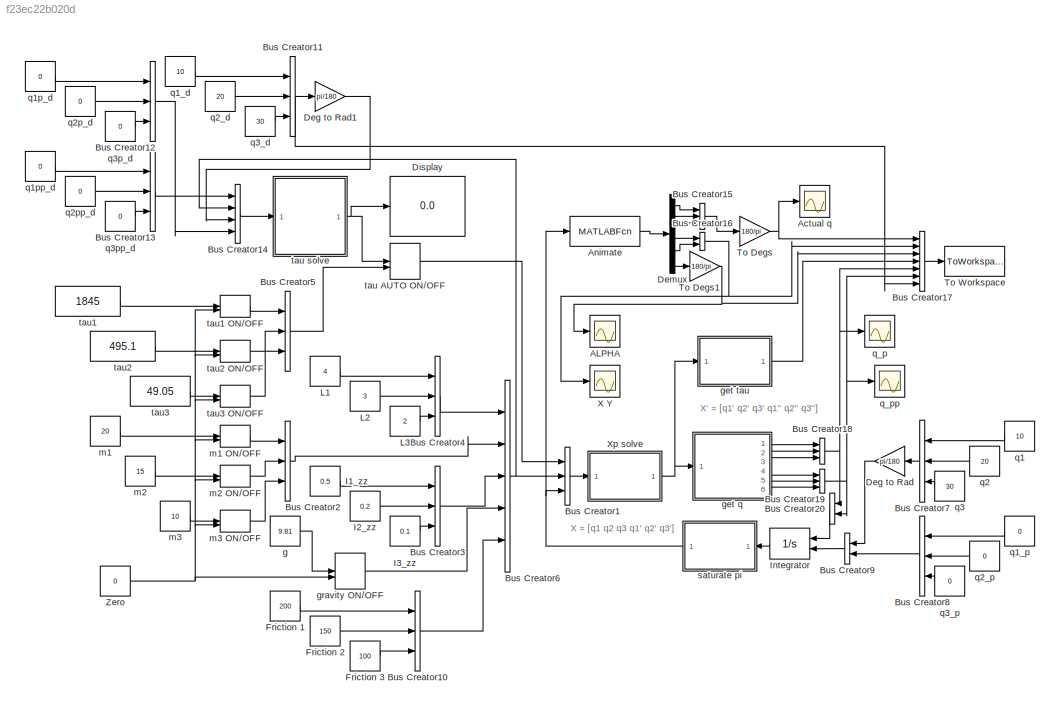
MODEL slx_f23ec22b020d
KIND model
BLOCK [Scope] ALPHA
  DataFormat = StructureWithTime
  Floating = off
  LegendLocations = 0.77914     0.84116     0.17157    0.056169
  NumInputPorts = 1
  Ports = [1]
  SampleTime = 0
  SaveName = ScopeData3
  ShowLegends = on
  TimeRange = 10
  YMax = 200
  YMin = -175
BLOCK [Scope] Actual q
  DataFormat = StructureWithTime
  Floating = off
  LegendLocations = 0.77787     0.79625     0.17363      0.1185
  NumInputPorts = 1
  Ports = [1]
  SampleTime = 0
  ShowLegends = on
  TimeRange = 10
  YMax = 175
  YMin = -175
BLOCK [MATLABFcn] Animate
  MATLABFcn = project_animate
  OutputDimensions = 6
  OutputSignalType = real
  Ports = [1, 1]
BLOCK [BusCreator] Bus Creator1
  DisplayOption = bar
  Inputs = 3
  Ports = [3, 1]
BLOCK [BusCreator] Bus Creator10
  DisplayOption = bar
  Inputs = 3
  Ports = [3, 1]
BLOCK [BusCreator] Bus Creator11
  DisplayOption = bar
  Inputs = 3
  Ports = [3, 1]
BLOCK [BusCreator] Bus Creator12
  DisplayOption = bar
  Inputs = 3
  Ports = [3, 1]
BLOCK [BusCreator] Bus Creator13
  DisplayOption = bar
  Inputs = 3
  Ports = [3, 1]
BLOCK [BusCreator] Bus Creator14
  DisplayOption = bar
  Ports = [4, 1]
BLOCK [BusCreator] Bus Creator15
  DisplayOption = bar
  Inputs = 3
  Ports = [3, 1]
BLOCK [BusCreator] Bus Creator16
  DisplayOption = bar
  Inputs = 2
  Ports = [2, 1]
BLOCK [BusCreator] Bus Creator17
  DisplayOption = bar
  Inputs = 7
  Ports = [7, 1]
BLOCK [BusCreator] Bus Creator18
  DisplayOption = bar
  Inputs = 3
  Ports = [3, 1]
BLOCK [BusCreator] Bus Creator19
  DisplayOption = bar
  Inputs = 3
  Ports = [3, 1]
BLOCK [BusCreator] Bus Creator2
  DisplayOption = bar
  Inputs = 3
  Ports = [3, 1]
BLOCK [BusCreator] Bus Creator20
  DisplayOption = bar
  Inputs = 2
  Ports = [2, 1]
BLOCK [BusCreator] Bus Creator3
  DisplayOption = bar
  Inputs = 3
  Ports = [3, 1]
BLOCK [BusCreator] Bus Creator4
  DisplayOption = bar
  Inputs = 3
  Ports = [3, 1]
BLOCK [BusCreator] Bus Creator5
  DisplayOption = bar
  Inputs = 3
  Ports = [3, 1]
BLOCK [BusCreator] Bus Creator6
  DisplayOption = bar
  Inputs = 5
  Ports = [5, 1]
BLOCK [BusCreator] Bus Creator7
  DisplayOption = bar
  Inputs = 3
  Ports = [3, 1]
BLOCK [BusCreator] Bus Creator8
  DisplayOption = bar
  Inputs = 3
  Ports = [3, 1]
BLOCK [BusCreator] Bus Creator9
  DisplayOption = bar
  Inputs = 2
  Ports = [2, 1]
BLOCK [Gain] Deg to Rad
  Gain = pi/180
  OutDataTypeStr = Inherit: Inherit via internal rule
  ParamDataTypeStr = Inherit: Inherit via internal rule
  SaturateOnIntegerOverflow = off
BLOCK [Gain] Deg to Rad1
  Gain = pi/180
  OutDataTypeStr = Inherit: Inherit via internal rule
  ParamDataTypeStr = Inherit: Inherit via internal rule
  SaturateOnIntegerOverflow = off
BLOCK [Demux] Demux
  DisplayOption = bar
  Outputs = 6
  Ports = [1, 6]
BLOCK [Display] Display
  Decimation = 1
  Lockdown = off
  Ports = [1]
BLOCK [Constant] Friction 1
  Value = 200
BLOCK [Constant] Friction 2
  Value = 150
BLOCK [Constant] Friction 3
  Value = 100
BLOCK [Constant] I1_zz
  Value = 0.5
BLOCK [Constant] I2_zz
  Value = 0.2
BLOCK [Constant] I3_zz
  Value = 0.1
BLOCK [Integrator] Integrator
  InitialConditionSource = external
  Ports = [2, 1]
BLOCK [Constant] L1
  Value = 4
BLOCK [Constant] L2
  Value = 3
BLOCK [Constant] L3
  Value = 2
BLOCK [Gain] To Degs
  Gain = 180/pi
  OutDataTypeStr = Inherit: Inherit via internal rule
  ParamDataTypeStr = Inherit: Inherit via internal rule
  SaturateOnIntegerOverflow = off
BLOCK [Gain] To Degs1
  Gain = 180/pi
  OutDataTypeStr = Inherit: Inherit via internal rule
  ParamDataTypeStr = Inherit: Inherit via internal rule
  SaturateOnIntegerOverflow = off
BLOCK [ToWorkspace] To Workspace
  MaxDataPoints = inf
  Ports = [1]
  SampleTime = -1
  SaveFormat = Structure With Time
  VariableName = simout
BLOCK [Scope] X Y
  DataFormat = StructureWithTime
  Floating = off
  LegendLocations = 0.80668     0.87419     0.16832    0.076596
  NumInputPorts = 1
  Ports = [1]
  SampleTime = 0
  SaveName = ScopeData2
  ShowLegends = on
  TimeRange = 10
  YMax = 9
  YMin = -0.5
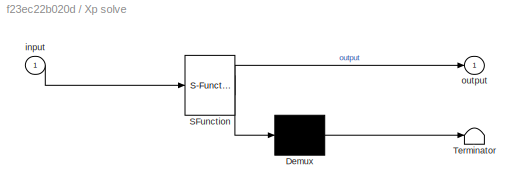
BLOCK [SubSystem] Xp solve
  ErrorFcn = Stateflow.Translate.translate
  FunctionWithSeparateData = off
  MaskHideContents = off
  MinAlgLoopOccurrences = off
  Opaque = off
  PermitHierarchicalResolution = ExplicitOnly
  Ports = [1, 1]
  PropExecContextOutsideSubsystem = off
  RTWSystemCode = Auto
  RequestExecContextInheritance = off
  SFBlockType = MATLAB Function
  TreatAsAtomicUnit = on
BLOCK [Demux] Xp solve/ Demux 
  Outputs = 1
  Ports = [1, 1]
BLOCK [S-Function] Xp solve/ SFunction 
  EnableBusSupport = on
  FunctionName = sf_sfun
  PortCounts = [1 2]
  Ports = [1, 2]
  Tag = Stateflow S-Function project_task_1 1
BLOCK [Terminator] Xp solve/ Terminator 
BLOCK [Inport] Xp solve/input
  IconDisplay = Port number
BLOCK [Outport] Xp solve/output
  IconDisplay = Port number
BLOCK [Constant] Zero
  Value = 0
BLOCK [Constant] g
  Value = 9.81
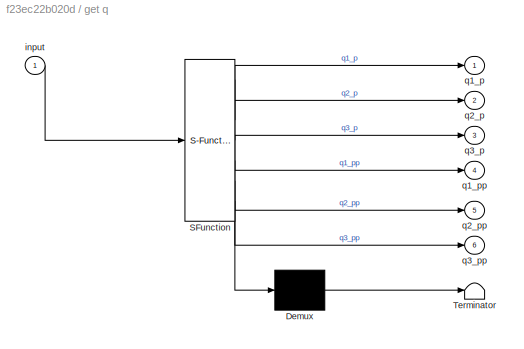
BLOCK [SubSystem] get q
  ErrorFcn = Stateflow.Translate.translate
  FunctionWithSeparateData = off
  MaskHideContents = off
  MinAlgLoopOccurrences = off
  Opaque = off
  PermitHierarchicalResolution = ExplicitOnly
  Ports = [1, 6]
  PropExecContextOutsideSubsystem = off
  RTWSystemCode = Auto
  RequestExecContextInheritance = off
  SFBlockType = MATLAB Function
  TreatAsAtomicUnit = on
BLOCK [Demux] get q/ Demux 
  Outputs = 1
  Ports = [1, 1]
BLOCK [S-Function] get q/ SFunction 
  EnableBusSupport = on
  FunctionName = sf_sfun
  PortCounts = [1 7]
  Ports = [1, 7]
  Tag = Stateflow S-Function project_task_1 4
BLOCK [Terminator] get q/ Terminator 
BLOCK [Inport] get q/input
  IconDisplay = Port number
BLOCK [Outport] get q/q1_p
  IconDisplay = Port number
BLOCK [Outport] get q/q1_pp
  IconDisplay = Port number
  Port = 4
BLOCK [Outport] get q/q2_p
  IconDisplay = Port number
  Port = 2
BLOCK [Outport] get q/q2_pp
  IconDisplay = Port number
  Port = 5
BLOCK [Outport] get q/q3_p
  IconDisplay = Port number
  Port = 3
BLOCK [Outport] get q/q3_pp
  IconDisplay = Port number
  Port = 6
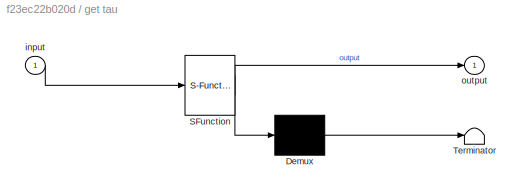
BLOCK [SubSystem] get tau
  ErrorFcn = Stateflow.Translate.translate
  FunctionWithSeparateData = off
  MaskHideContents = off
  MinAlgLoopOccurrences = off
  Opaque = off
  PermitHierarchicalResolution = ExplicitOnly
  Ports = [1, 1]
  PropExecContextOutsideSubsystem = off
  RTWSystemCode = Auto
  RequestExecContextInheritance = off
  SFBlockType = MATLAB Function
  TreatAsAtomicUnit = on
BLOCK [Demux] get tau/ Demux 
  Outputs = 1
  Ports = [1, 1]
BLOCK [S-Function] get tau/ SFunction 
  EnableBusSupport = on
  FunctionName = sf_sfun
  PortCounts = [1 2]
  Ports = [1, 2]
  Tag = Stateflow S-Function project_task_1 2
BLOCK [Terminator] get tau/ Terminator 
BLOCK [Inport] get tau/input
  IconDisplay = Port number
BLOCK [Outport] get tau/output
  IconDisplay = Port number
BLOCK [ManualSwitch] gravity ON//OFF
BLOCK [Constant] m1
  Value = 20
BLOCK [ManualSwitch] m1 ON//OFF
BLOCK [Constant] m2
  Value = 15
BLOCK [ManualSwitch] m2 ON//OFF
BLOCK [Constant] m3
  Value = 10
BLOCK [ManualSwitch] m3 ON//OFF
BLOCK [Constant] q1
  Value = 10
BLOCK [Constant] q1_d
  Value = 10
BLOCK [Constant] q1_p
  Value = 0
BLOCK [Constant] q1p_d
  Value = 0
BLOCK [Constant] q1pp_d
  Value = 0
BLOCK [Constant] q2
  Value = 20
BLOCK [Constant] q2_d
  Value = 20
BLOCK [Constant] q2_p
  Value = 0
BLOCK [Constant] q2p_d
  Value = 0
BLOCK [Constant] q2pp_d
  Value = 0
BLOCK [Constant] q3
  Value = 30
BLOCK [Constant] q3_d
  Value = 30
BLOCK [Constant] q3_p
  Value = 0
BLOCK [Constant] q3p_d
  Value = 0
BLOCK [Constant] q3pp_d
  Value = 0
BLOCK [Scope] q_p
  DataFormat = StructureWithTime
  Floating = off
  NumInputPorts = 1
  Ports = [1]
  SampleTime = 0
  SaveName = ScopeData1
  ShowLegends = on
  TimeRange = 20
  YMax = 1.5
  YMin = -1.75
BLOCK [Scope] q_pp
  DataFormat = StructureWithTime
  Floating = off
  NumInputPorts = 1
  Ports = [1]
  SampleTime = 0
  SaveName = ScopeData4
  ShowLegends = on
  TimeRange = 20
  YMax = 40
  YMin = -75
  ZoomMode = xonly
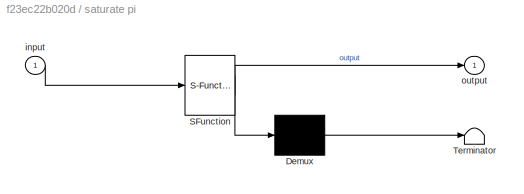
BLOCK [SubSystem] saturate pi
  ErrorFcn = Stateflow.Translate.translate
  FunctionWithSeparateData = off
  MaskHideContents = off
  MinAlgLoopOccurrences = off
  Opaque = off
  PermitHierarchicalResolution = ExplicitOnly
  Ports = [1, 1]
  PropExecContextOutsideSubsystem = off
  RTWSystemCode = Auto
  RequestExecContextInheritance = off
  SFBlockType = MATLAB Function
  TreatAsAtomicUnit = on
BLOCK [Demux] saturate pi/ Demux 
  Outputs = 1
  Ports = [1, 1]
BLOCK [S-Function] saturate pi/ SFunction 
  EnableBusSupport = on
  FunctionName = sf_sfun
  PortCounts = [1 2]
  Ports = [1, 2]
  Tag = Stateflow S-Function project_task_1 3
BLOCK [Terminator] saturate pi/ Terminator 
BLOCK [Inport] saturate pi/input
  IconDisplay = Port number
BLOCK [Outport] saturate pi/output
  IconDisplay = Port number
BLOCK [ManualSwitch] tau AUTO ON//OFF
  CurrentSetting = 0
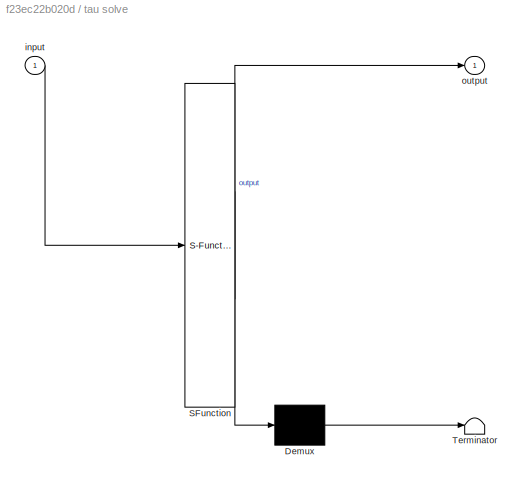
BLOCK [SubSystem] tau solve
  ErrorFcn = Stateflow.Translate.translate
  FunctionWithSeparateData = off
  MaskHideContents = off
  MinAlgLoopOccurrences = off
  Opaque = off
  PermitHierarchicalResolution = ExplicitOnly
  Ports = [1, 1]
  PropExecContextOutsideSubsystem = off
  RTWSystemCode = Auto
  RequestExecContextInheritance = off
  SFBlockType = MATLAB Function
  TreatAsAtomicUnit = on
BLOCK [Demux] tau solve/ Demux 
  Outputs = 1
  Ports = [1, 1]
BLOCK [S-Function] tau solve/ SFunction 
  EnableBusSupport = on
  FunctionName = sf_sfun
  PortCounts = [1 2]
  Ports = [1, 2]
  Tag = Stateflow S-Function project_task_1 5
BLOCK [Terminator] tau solve/ Terminator 
BLOCK [Inport] tau solve/input
  IconDisplay = Port number
BLOCK [Outport] tau solve/output
  IconDisplay = Port number
BLOCK [Constant] tau1
  Value = 1845
BLOCK [ManualSwitch] tau1 ON//OFF
BLOCK [Constant] tau2
  Value = 495.1
BLOCK [ManualSwitch] tau2 ON//OFF
BLOCK [Constant] tau3
  Value = 49.05
BLOCK [ManualSwitch] tau3 ON//OFF
ANNOTATION (root): X = [q1 q2 q3 q1' q2' q3']
ANNOTATION (root): X' = [q1' q2' q3' q1'' q2'' q3'']
LINE Animate:1 -> Demux:1
LINE Bus Creator10:1 -> Bus Creator6:5
NET Bus Creator11:1 -> Bus Creator17:7, Deg to Rad1:1
LINE Bus Creator12:1 -> Bus Creator14:4
LINE Bus Creator13:1 -> Bus Creator14:1
LINE Bus Creator14:1 -> tau solve:1
LINE Bus Creator15:1 -> To Degs:1
NET Bus Creator16:1 -> Bus Creator17:2, X Y:1
LINE Bus Creator17:1 -> To Workspace:1
NET Bus Creator18:1 -> Bus Creator17:5, Bus Creator20:1, q_p:1
NET Bus Creator19:1 -> Bus Creator17:6, Bus Creator20:2, q_pp:1
LINE Bus Creator1:1 -> Xp solve:1
LINE Bus Creator20:1 -> Integrator:1
LINE Bus Creator2:1 -> Bus Creator6:2
LINE Bus Creator3:1 -> Bus Creator6:3
LINE Bus Creator4:1 -> Bus Creator6:1
LINE Bus Creator5:1 -> tau AUTO ON//OFF:2
NET Bus Creator6:1 -> Bus Creator14:2, Bus Creator1:2
LINE Bus Creator7:1 -> Deg to Rad:1
LINE Bus Creator8:1 -> Bus Creator9:2
LINE Bus Creator9:1 -> Integrator:2
LINE Deg to Rad1:1 -> Bus Creator14:3
LINE Deg to Rad:1 -> Bus Creator9:1
LINE Demux:1 -> Bus Creator15:1
LINE Demux:2 -> Bus Creator15:2
LINE Demux:3 -> Bus Creator15:3
LINE Demux:4 -> Bus Creator16:1
LINE Demux:5 -> Bus Creator16:2
LINE Demux:6 -> To Degs1:1
LINE Friction 1:1 -> Bus Creator10:1
LINE Friction 2:1 -> Bus Creator10:2
LINE Friction 3:1 -> Bus Creator10:3
LINE I1_zz:1 -> Bus Creator3:1
LINE I2_zz:1 -> Bus Creator3:2
LINE I3_zz:1 -> Bus Creator3:3
LINE Integrator:1 -> saturate pi:1
LINE L1:1 -> Bus Creator4:1
LINE L2:1 -> Bus Creator4:2
LINE L3:1 -> Bus Creator4:3
NET To Degs1:1 -> ALPHA:1, Bus Creator17:3
NET To Degs:1 -> Actual q:1, Bus Creator17:1
NET Xp solve:1 -> get q:1, get tau:1
NET Zero:1 -> gravity ON//OFF:2, m1 ON//OFF:2, m2 ON//OFF:2, m3 ON//OFF:2, tau1 ON//OFF:2, tau2 ON//OFF:2, tau3 ON//OFF:2
LINE g:1 -> gravity ON//OFF:1
LINE get q:1 -> Bus Creator18:1
LINE get q:2 -> Bus Creator18:2
LINE get q:3 -> Bus Creator18:3
LINE get q:4 -> Bus Creator19:1
LINE get q:5 -> Bus Creator19:2
LINE get q:6 -> Bus Creator19:3
LINE get tau:1 -> Bus Creator17:4
LINE gravity ON//OFF:1 -> Bus Creator6:4
LINE m1 ON//OFF:1 -> Bus Creator2:1
LINE m1:1 -> m1 ON//OFF:1
LINE m2 ON//OFF:1 -> Bus Creator2:2
LINE m2:1 -> m2 ON//OFF:1
LINE m3 ON//OFF:1 -> Bus Creator2:3
LINE m3:1 -> m3 ON//OFF:1
LINE q1:1 -> Bus Creator7:1
LINE q1_d:1 -> Bus Creator11:1
LINE q1_p:1 -> Bus Creator8:1
LINE q1p_d:1 -> Bus Creator12:1
LINE q1pp_d:1 -> Bus Creator13:1
LINE q2:1 -> Bus Creator7:2
LINE q2_d:1 -> Bus Creator11:2
LINE q2_p:1 -> Bus Creator8:2
LINE q2p_d:1 -> Bus Creator12:2
LINE q2pp_d:1 -> Bus Creator13:2
LINE q3:1 -> Bus Creator7:3
LINE q3_d:1 -> Bus Creator11:3
LINE q3_p:1 -> Bus Creator8:3
LINE q3p_d:1 -> Bus Creator12:3
LINE q3pp_d:1 -> Bus Creator13:3
NET saturate pi:1 -> Animate:1, Bus Creator1:3
LINE tau AUTO ON//OFF:1 -> Bus Creator1:1
NET tau solve:1 -> Display:1, tau AUTO ON//OFF:1
LINE tau1 ON//OFF:1 -> Bus Creator5:1
LINE tau1:1 -> tau1 ON//OFF:1
LINE tau2 ON//OFF:1 -> Bus Creator5:2
LINE tau2:1 -> tau2 ON//OFF:1
LINE tau3 ON//OFF:1 -> Bus Creator5:3
LINE tau3:1 -> tau3 ON//OFF:1
note: NET lines group one-source signal fan-out (src -> all destinations, sorted); 1:1 wires keep LINE
